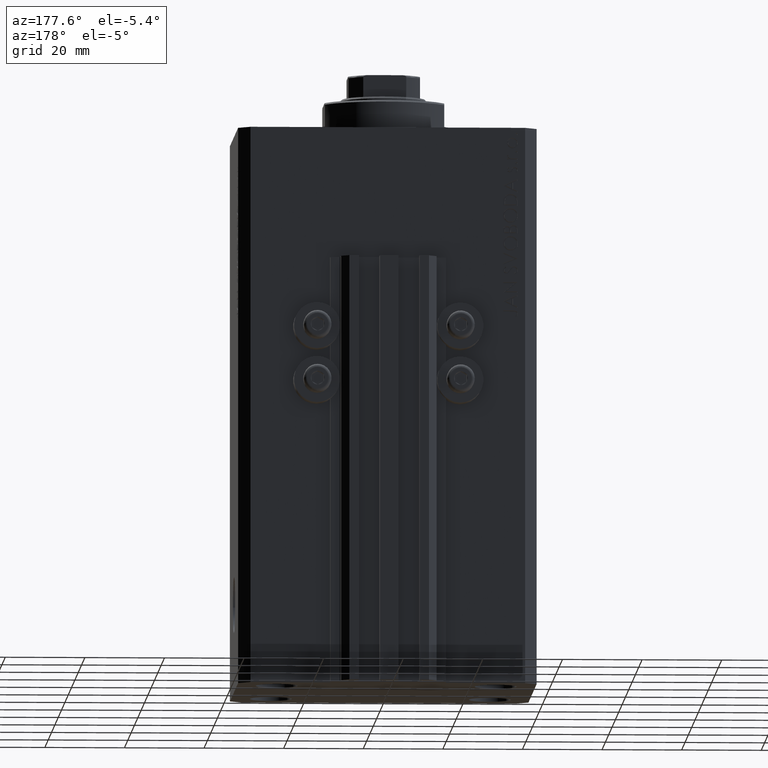
[diagram: clean part render]
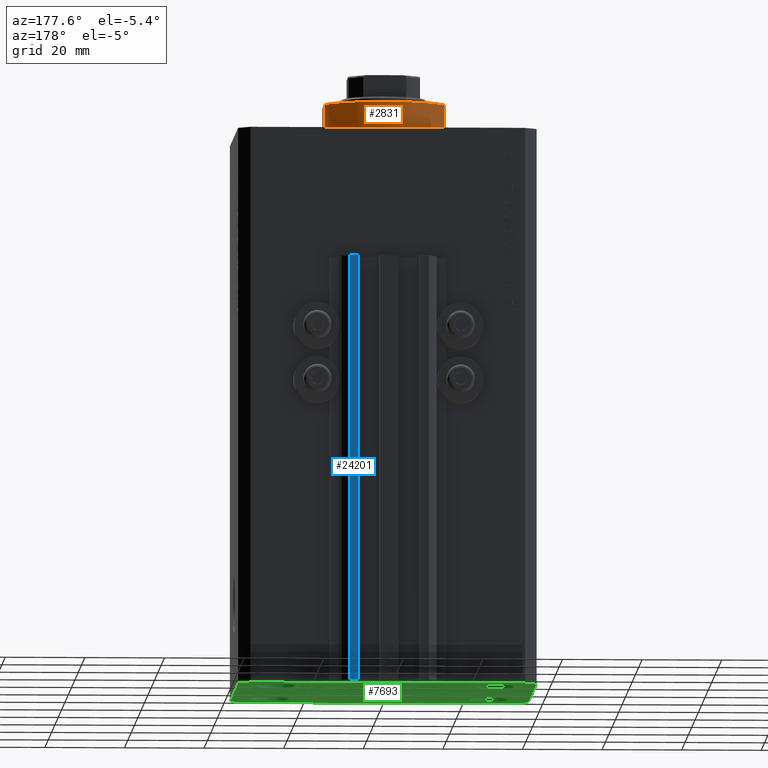
[diagram: same view with three faces highlighted in distinct colors, each labeled with its STEP entity id]
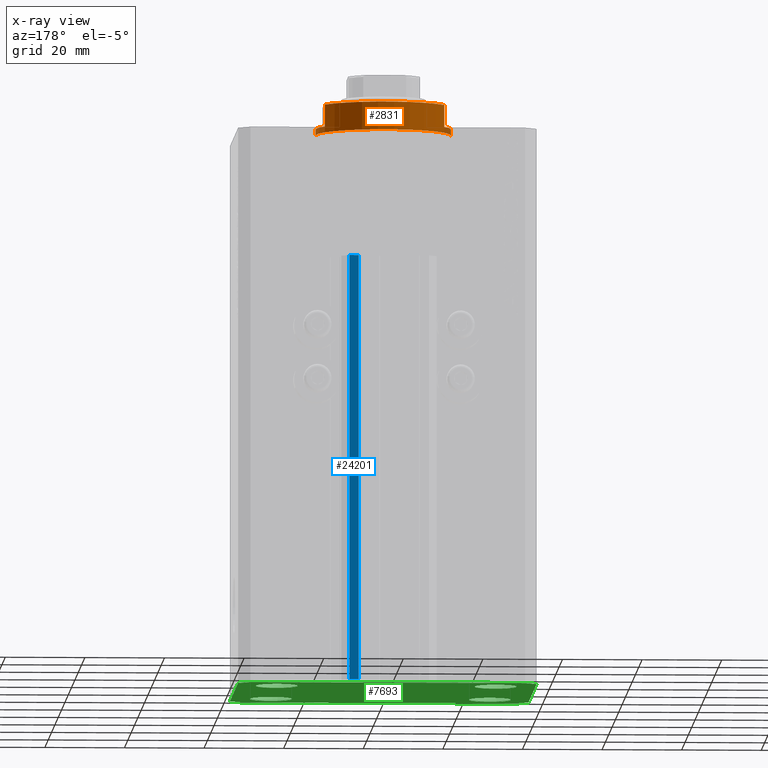
[diagram: x-ray of the same camera — body ghosted, the three highlighted faces saturated]
A machine part, auxiliary view with three faces highlighted in distinct colors.
The next image is the same camera in x-ray (body ghosted, the three faces saturated) — at least one of them is partly hidden behind the body in this view.
Their STEP definitions:

[orange] entity #2831 — the highlighted cylindrical surface (partial cylindrical patch) has radius 17 mm, axis along (0, 0, -1).
#820 = ORIENTED_EDGE ( 'NONE', *, *, #42246, .F. ) ;
#1907 = AXIS2_PLACEMENT_3D ( 'NONE', #11049, #12398, #40844 ) ;
#2378 = LINE ( 'NONE', #28148, #38679 ) ;
#2610 = CARTESIAN_POINT ( 'NONE',  ( 0.000000000000000000, 0.000000000000000000, -2.000000000000000000 ) ) ;
#2831 = ADVANCED_FACE ( 'NONE', ( #43549 ), #34150, .T. ) ;
#3089 = DIRECTION ( 'NONE',  ( 0.000000000000000000, 0.000000000000000000, -1.000000000000000000 ) ) ;
#3138 = ORIENTED_EDGE ( 'NONE', *, *, #18971, .T. ) ;
#3549 = DIRECTION ( 'NONE',  ( -1.000000000000000000, 0.000000000000000000, 0.000000000000000000 ) ) ;
#3737 = CARTESIAN_POINT ( 'NONE',  ( 15.00000000000000000, 8.000000000000001776, -7.500000000000013323 ) ) ;
#5488 = DIRECTION ( 'NONE',  ( -0.000000000000000000, -0.000000000000000000, -1.000000000000000000 ) ) ;
#6557 = VERTEX_POINT ( 'NONE', #43395 ) ;
#7345 = VERTEX_POINT ( 'NONE', #19188 ) ;
#7650 = VECTOR ( 'NONE', #30373, 1000.000000000000000 ) ;
#7924 = CARTESIAN_POINT ( 'NONE',  ( -15.00000000000000000, 8.000000000000001776, -8.000000000000000000 ) ) ;
#8160 = CARTESIAN_POINT ( 'NONE',  ( -17.00000000000000000, 2.081899558550500280E-15, -2.000000000000000000 ) ) ;
#8612 = DIRECTION ( 'NONE',  ( -1.000000000000000000, 0.000000000000000000, 0.000000000000000000 ) ) ;
#9525 = DIRECTION ( 'NONE',  ( -0.000000000000000000, -0.000000000000000000, 1.000000000000000000 ) ) ;
#10522 = AXIS2_PLACEMENT_3D ( 'NONE', #2610, #3089, #32218 ) ;
#10935 = CARTESIAN_POINT ( 'NONE',  ( 0.000000000000000000, 0.000000000000000000, -7.500000000000013323 ) ) ;
#11049 = CARTESIAN_POINT ( 'NONE',  ( 0.000000000000000000, 0.000000000000000000, -8.000000000000000000 ) ) ;
#11273 = CARTESIAN_POINT ( 'NONE',  ( -15.00000000000000000, 8.000000000000001776, -7.500000000000013323 ) ) ;
#12398 = DIRECTION ( 'NONE',  ( -0.000000000000000000, -0.000000000000000000, 1.000000000000000000 ) ) ;
#13147 = EDGE_CURVE ( 'NONE', #6557, #34863, #28142, .T. ) ;
#13293 = AXIS2_PLACEMENT_3D ( 'NONE', #31753, #5488, #42266 ) ;
#13467 = DIRECTION ( 'NONE',  ( -0.000000000000000000, -0.000000000000000000, 1.000000000000000000 ) ) ;
#14548 = ORIENTED_EDGE ( 'NONE', *, *, #47253, .F. ) ;
#18639 = ORIENTED_EDGE ( 'NONE', *, *, #40259, .T. ) ;
#18900 = VERTEX_POINT ( 'NONE', #11273 ) ;
#18971 = EDGE_CURVE ( 'NONE', #18900, #20647, #40886, .T. ) ;
#19188 = CARTESIAN_POINT ( 'NONE',  ( 14.99999999999999645, 8.000000000000003553, -2.000000000000000000 ) ) ;
#20647 = VERTEX_POINT ( 'NONE', #34540 ) ;
#22708 = CARTESIAN_POINT ( 'NONE',  ( 17.00000000000000000, 0.000000000000000000, -0.5000000000000004441 ) ) ;
#22837 = ORIENTED_EDGE ( 'NONE', *, *, #13147, .F. ) ;
#23013 = VERTEX_POINT ( 'NONE', #3737 ) ;
#23907 = CIRCLE ( 'NONE', #35377, 17.00000000000000000 ) ;
#24794 = CIRCLE ( 'NONE', #27078, 17.00000000000000000 ) ;
#25621 = VECTOR ( 'NONE', #13467, 1000.000000000000000 ) ;
#25819 = CARTESIAN_POINT ( 'NONE',  ( 0.000000000000000000, 0.000000000000000000, -2.000000000000000000 ) ) ;
#26090 = EDGE_LOOP ( 'NONE', ( #26124, #35915, #32798, #22837, #14548, #820, #18639, #3138 ) ) ;
#26124 = ORIENTED_EDGE ( 'NONE', *, *, #31512, .F. ) ;
#26497 = VERTEX_POINT ( 'NONE', #8160 ) ;
#27078 = AXIS2_PLACEMENT_3D ( 'NONE', #10935, #43431, #3549 ) ;
#28142 = LINE ( 'NONE', #45603, #33393 ) ;
#28148 = CARTESIAN_POINT ( 'NONE',  ( -17.00000000000000000, 2.081899558550500280E-15, -8.000000000000000000 ) ) ;
#29644 = DIRECTION ( 'NONE',  ( 0.000000000000000000, 0.000000000000000000, -1.000000000000000000 ) ) ;
#30099 = CIRCLE ( 'NONE', #13293, 17.00000000000000000 ) ;
#30373 = DIRECTION ( 'NONE',  ( -0.000000000000000000, -0.000000000000000000, 1.000000000000000000 ) ) ;
#31512 = EDGE_CURVE ( 'NONE', #26497, #20647, #23907, .T. ) ;
#31753 = CARTESIAN_POINT ( 'NONE',  ( 0.000000000000000000, 0.000000000000000000, -0.5000000000000004441 ) ) ;
#32218 = DIRECTION ( 'NONE',  ( -1.000000000000000000, 0.000000000000000000, 0.000000000000000000 ) ) ;
#32798 = ORIENTED_EDGE ( 'NONE', *, *, #37594, .T. ) ;
#33393 = VECTOR ( 'NONE', #9525, 1000.000000000000000 ) ;
#34150 = CYLINDRICAL_SURFACE ( 'NONE', #1907, 17.00000000000000000 ) ;
#34540 = CARTESIAN_POINT ( 'NONE',  ( -14.99999999999999645, 8.000000000000003553, -2.000000000000000000 ) ) ;
#34863 = VERTEX_POINT ( 'NONE', #22708 ) ;
#35377 = AXIS2_PLACEMENT_3D ( 'NONE', #25819, #29644, #8612 ) ;
#35453 = LINE ( 'NONE', #38799, #25621 ) ;
#35716 = CIRCLE ( 'NONE', #10522, 17.00000000000000000 ) ;
#35915 = ORIENTED_EDGE ( 'NONE', *, *, #45175, .T. ) ;
#37594 = EDGE_CURVE ( 'NONE', #37692, #34863, #30099, .T. ) ;
#37692 = VERTEX_POINT ( 'NONE', #39861 ) ;
#38679 = VECTOR ( 'NONE', #39135, 1000.000000000000000 ) ;
#38799 = CARTESIAN_POINT ( 'NONE',  ( 15.00000000000000000, 8.000000000000001776, -8.000000000000000000 ) ) ;
#39135 = DIRECTION ( 'NONE',  ( -0.000000000000000000, -0.000000000000000000, 1.000000000000000000 ) ) ;
#39861 = CARTESIAN_POINT ( 'NONE',  ( -17.00000000000000000, 2.081899558550500280E-15, -0.5000000000000004441 ) ) ;
#40259 = EDGE_CURVE ( 'NONE', #23013, #18900, #24794, .T. ) ;
#40844 = DIRECTION ( 'NONE',  ( 1.000000000000000000, 0.000000000000000000, 0.000000000000000000 ) ) ;
#40886 = LINE ( 'NONE', #7924, #7650 ) ;
#42246 = EDGE_CURVE ( 'NONE', #23013, #7345, #35453, .T. ) ;
#42266 = DIRECTION ( 'NONE',  ( 1.000000000000000000, 0.000000000000000000, 0.000000000000000000 ) ) ;
#43395 = CARTESIAN_POINT ( 'NONE',  ( 17.00000000000000000, 0.000000000000000000, -2.000000000000000000 ) ) ;
#43431 = DIRECTION ( 'NONE',  ( 0.000000000000000000, 0.000000000000000000, 1.000000000000000000 ) ) ;
#43549 = FACE_OUTER_BOUND ( 'NONE', #26090, .T. ) ;
#45175 = EDGE_CURVE ( 'NONE', #26497, #37692, #2378, .T. ) ;
#45603 = CARTESIAN_POINT ( 'NONE',  ( 17.00000000000000000, 0.000000000000000000, -8.000000000000000000 ) ) ;
#47253 = EDGE_CURVE ( 'NONE', #7345, #6557, #35716, .T. ) ;

[blue] entity #24201 — the highlighted planar face has unit normal (0, 1, 0).
#1618 = CARTESIAN_POINT ( 'NONE',  ( 9.999999999999998224, 35.50000000000001421, -33.00000000000000000 ) ) ;
#2148 = DIRECTION ( 'NONE',  ( 0.000000000000000000, 0.000000000000000000, 1.000000000000000000 ) ) ;
#3129 = VERTEX_POINT ( 'NONE', #42662 ) ;
#3596 = EDGE_CURVE ( 'NONE', #3129, #21233, #4131, .T. ) ;
#4131 = LINE ( 'NONE', #18915, #20224 ) ;
#4212 = DIRECTION ( 'NONE',  ( 0.000000000000000000, 1.000000000000000000, -0.000000000000000000 ) ) ;
#4213 = ORIENTED_EDGE ( 'NONE', *, *, #3596, .T. ) ;
#5053 = VERTEX_POINT ( 'NONE', #43140 ) ;
#5188 = DIRECTION ( 'NONE',  ( -1.000000000000000000, 0.000000000000000000, 0.000000000000000000 ) ) ;
#7867 = VECTOR ( 'NONE', #2148, 1000.000000000000000 ) ;
#8469 = LINE ( 'NONE', #16318, #23611 ) ;
#11845 = FACE_OUTER_BOUND ( 'NONE', #43885, .T. ) ;
#12581 = LINE ( 'NONE', #1618, #25418 ) ;
#14424 = ORIENTED_EDGE ( 'NONE', *, *, #30063, .F. ) ;
#16318 = CARTESIAN_POINT ( 'NONE',  ( 9.999999999999998224, 35.50000000000001421, -140.0000000000000000 ) ) ;
#18915 = CARTESIAN_POINT ( 'NONE',  ( 9.999999999999998224, 35.50000000000001421, -140.0000000000000000 ) ) ;
#19719 = ORIENTED_EDGE ( 'NONE', *, *, #30956, .T. ) ;
#20224 = VECTOR ( 'NONE', #44257, 1000.000000000000000 ) ;
#20274 = CARTESIAN_POINT ( 'NONE',  ( 7.649999999999998579, 35.50000000000001421, -140.0000000000000000 ) ) ;
#20992 = EDGE_CURVE ( 'NONE', #3129, #5053, #8469, .T. ) ;
#21233 = VERTEX_POINT ( 'NONE', #31019 ) ;
#22344 = CARTESIAN_POINT ( 'NONE',  ( 9.999999999999998224, 35.50000000000001421, -140.0000000000000000 ) ) ;
#23611 = VECTOR ( 'NONE', #37602, 1000.000000000000000 ) ;
#24201 = ADVANCED_FACE ( 'NONE', ( #11845 ), #26414, .T. ) ;
#25418 = VECTOR ( 'NONE', #5188, 1000.000000000000000 ) ;
#26414 = PLANE ( 'NONE',  #38959 ) ;
#30063 = EDGE_CURVE ( 'NONE', #5053, #38099, #12581, .T. ) ;
#30956 = EDGE_CURVE ( 'NONE', #21233, #38099, #38433, .T. ) ;
#31019 = CARTESIAN_POINT ( 'NONE',  ( 7.649999999999998579, 35.50000000000001421, -140.0000000000000000 ) ) ;
#37602 = DIRECTION ( 'NONE',  ( 0.000000000000000000, 0.000000000000000000, 1.000000000000000000 ) ) ;
#38099 = VERTEX_POINT ( 'NONE', #39696 ) ;
#38433 = LINE ( 'NONE', #20274, #7867 ) ;
#38959 = AXIS2_PLACEMENT_3D ( 'NONE', #22344, #4212, #40987 ) ;
#39696 = CARTESIAN_POINT ( 'NONE',  ( 7.649999999999998579, 35.50000000000001421, -33.00000000000000000 ) ) ;
#40493 = ORIENTED_EDGE ( 'NONE', *, *, #20992, .F. ) ;
#40987 = DIRECTION ( 'NONE',  ( 0.000000000000000000, 0.000000000000000000, 1.000000000000000000 ) ) ;
#42662 = CARTESIAN_POINT ( 'NONE',  ( 9.999999999999998224, 35.50000000000001421, -140.0000000000000000 ) ) ;
#43140 = CARTESIAN_POINT ( 'NONE',  ( 9.999999999999998224, 35.50000000000001421, -33.00000000000000000 ) ) ;
#43885 = EDGE_LOOP ( 'NONE', ( #14424, #40493, #4213, #19719 ) ) ;
#44257 = DIRECTION ( 'NONE',  ( -1.000000000000000000, 0.000000000000000000, 0.000000000000000000 ) ) ;

[green] entity #7693 — the highlighted planar face has unit normal (0, 0, 1).
#401 = ORIENTED_EDGE ( 'NONE', *, *, #1335, .F. ) ;
#635 = LINE ( 'NONE', #19230, #16343 ) ;
#913 = ORIENTED_EDGE ( 'NONE', *, *, #34269, .F. ) ;
#1151 = EDGE_CURVE ( 'NONE', #47142, #14734, #45563, .T. ) ;
#1335 = EDGE_CURVE ( 'NONE', #21007, #3024, #635, .T. ) ;
#1942 = FACE_BOUND ( 'NONE', #23399, .T. ) ;
#2489 = CARTESIAN_POINT ( 'NONE',  ( -22.25000000000000000, 17.49999999999999645, -140.0000000000000000 ) ) ;
#2663 = CARTESIAN_POINT ( 'NONE',  ( 34.49999999999999289, -27.49999999999999645, -140.0000000000000000 ) ) ;
#3024 = VERTEX_POINT ( 'NONE', #37205 ) ;
#3072 = VECTOR ( 'NONE', #21852, 1000.000000000000000 ) ;
#3428 = VERTEX_POINT ( 'NONE', #17750 ) ;
#3948 = CARTESIAN_POINT ( 'NONE',  ( 32.75000000000000000, 17.49999999999999289, -140.0000000000000000 ) ) ;
#4161 = DIRECTION ( 'NONE',  ( -0.000000000000000000, -0.000000000000000000, -1.000000000000000000 ) ) ;
#4254 = CARTESIAN_POINT ( 'NONE',  ( -32.75000000000000000, 17.49999999999999645, -140.0000000000000000 ) ) ;
#4732 = LINE ( 'NONE', #41271, #14947 ) ;
#4746 = CARTESIAN_POINT ( 'NONE',  ( 32.74999999999999289, -17.50000000000000000, -140.0000000000000000 ) ) ;
#5329 = EDGE_LOOP ( 'NONE', ( #8582, #29003 ) ) ;
#5512 = FACE_BOUND ( 'NONE', #14070, .T. ) ;
#5673 = CIRCLE ( 'NONE', #8755, 5.250000000000000888 ) ;
#5878 = VECTOR ( 'NONE', #44306, 1000.000000000000000 ) ;
#5907 = CARTESIAN_POINT ( 'NONE',  ( 37.49999999999999289, -24.50000000000000000, -140.0000000000000000 ) ) ;
#6583 = CARTESIAN_POINT ( 'NONE',  ( 37.50000000000051870, 24.49999999999995381, -140.0000000000000000 ) ) ;
#7693 = ADVANCED_FACE ( 'NONE', ( #13383, #13144, #1942, #5512, #12440 ), #20069, .F. ) ;
#8557 = EDGE_CURVE ( 'NONE', #44649, #33722, #30944, .T. ) ;
#8582 = ORIENTED_EDGE ( 'NONE', *, *, #24155, .F. ) ;
#8755 = AXIS2_PLACEMENT_3D ( 'NONE', #30192, #4161, #34008 ) ;
#8877 = DIRECTION ( 'NONE',  ( -0.000000000000000000, -0.000000000000000000, -1.000000000000000000 ) ) ;
#8948 = VECTOR ( 'NONE', #21141, 1000.000000000000114 ) ;
#8953 = CARTESIAN_POINT ( 'NONE',  ( 37.50000000000051870, 24.49999999999995381, -140.0000000000000000 ) ) ;
#9231 = AXIS2_PLACEMENT_3D ( 'NONE', #35762, #42924, #21413 ) ;
#9428 = ORIENTED_EDGE ( 'NONE', *, *, #29846, .F. ) ;
#9819 = LINE ( 'NONE', #35142, #13532 ) ;
#9857 = DIRECTION ( 'NONE',  ( 1.000000000000000000, 0.000000000000000000, 0.000000000000000000 ) ) ;
#10010 = VERTEX_POINT ( 'NONE', #4254 ) ;
#10430 = EDGE_LOOP ( 'NONE', ( #31952, #18006, #37903, #35002, #12809, #29093, #16193, #401 ) ) ;
#10749 = CARTESIAN_POINT ( 'NONE',  ( -27.50000000000000000, 17.49999999999999645, -140.0000000000000000 ) ) ;
#11610 = AXIS2_PLACEMENT_3D ( 'NONE', #40475, #22545, #26376 ) ;
#11841 = DIRECTION ( 'NONE',  ( -0.7071067811865471286, -0.7071067811865479058, 0.000000000000000000 ) ) ;
#12440 = FACE_OUTER_BOUND ( 'NONE', #10430, .T. ) ;
#12476 = VERTEX_POINT ( 'NONE', #35132 ) ;
#12588 = DIRECTION ( 'NONE',  ( 1.000000000000000000, 0.000000000000000000, 0.000000000000000000 ) ) ;
#12644 = EDGE_CURVE ( 'NONE', #22486, #10010, #30331, .T. ) ;
#12809 = ORIENTED_EDGE ( 'NONE', *, *, #41914, .F. ) ;
#13144 = FACE_BOUND ( 'NONE', #30785, .T. ) ;
#13383 = FACE_BOUND ( 'NONE', #5329, .T. ) ;
#13416 = CARTESIAN_POINT ( 'NONE',  ( -32.74999999999999289, -17.50000000000000000, -140.0000000000000000 ) ) ;
#13438 = VECTOR ( 'NONE', #29959, 1000.000000000000114 ) ;
#13501 = LINE ( 'NONE', #6583, #8948 ) ;
#13532 = VECTOR ( 'NONE', #28440, 1000.000000000000000 ) ;
#14070 = EDGE_LOOP ( 'NONE', ( #18601, #35031 ) ) ;
#14259 = EDGE_CURVE ( 'NONE', #33722, #44649, #27315, .T. ) ;
#14734 = VERTEX_POINT ( 'NONE', #8953 ) ;
#14947 = VECTOR ( 'NONE', #12588, 1000.000000000000000 ) ;
#16096 = CARTESIAN_POINT ( 'NONE',  ( -34.49999999999999289, 27.50000000000000000, -140.0000000000000000 ) ) ;
#16193 = ORIENTED_EDGE ( 'NONE', *, *, #45540, .F. ) ;
#16343 = VECTOR ( 'NONE', #11841, 1000.000000000000000 ) ;
#17750 = CARTESIAN_POINT ( 'NONE',  ( -34.49999999999998579, -27.49999999999999645, -140.0000000000000000 ) ) ;
#18006 = ORIENTED_EDGE ( 'NONE', *, *, #45457, .F. ) ;
#18040 = LINE ( 'NONE', #32615, #3072 ) ;
#18465 = ORIENTED_EDGE ( 'NONE', *, *, #8557, .F. ) ;
#18601 = ORIENTED_EDGE ( 'NONE', *, *, #12644, .F. ) ;
#19230 = CARTESIAN_POINT ( 'NONE',  ( -34.49999999999999289, 27.50000000000000000, -140.0000000000000000 ) ) ;
#19590 = VERTEX_POINT ( 'NONE', #36488 ) ;
#20069 = PLANE ( 'NONE',  #30170 ) ;
#21007 = VERTEX_POINT ( 'NONE', #16096 ) ;
#21141 = DIRECTION ( 'NONE',  ( -0.7071067811865364705, 0.7071067811865584529, 0.000000000000000000 ) ) ;
#21413 = DIRECTION ( 'NONE',  ( 1.000000000000000000, 0.000000000000000000, 0.000000000000000000 ) ) ;
#21625 = EDGE_CURVE ( 'NONE', #12476, #21007, #18040, .T. ) ;
#21804 = AXIS2_PLACEMENT_3D ( 'NONE', #30150, #8877, #30840 ) ;
#21852 = DIRECTION ( 'NONE',  ( -1.000000000000000000, 0.000000000000000000, 0.000000000000000000 ) ) ;
#22486 = VERTEX_POINT ( 'NONE', #2489 ) ;
#22545 = DIRECTION ( 'NONE',  ( -0.000000000000000000, -0.000000000000000000, -1.000000000000000000 ) ) ;
#22966 = DIRECTION ( 'NONE',  ( -0.000000000000000000, -0.000000000000000000, -1.000000000000000000 ) ) ;
#23399 = EDGE_LOOP ( 'NONE', ( #9428, #913 ) ) ;
#23628 = CARTESIAN_POINT ( 'NONE',  ( 37.49999999999999289, -24.50000000000000000, -140.0000000000000000 ) ) ;
#24155 = EDGE_CURVE ( 'NONE', #24513, #32331, #35177, .T. ) ;
#24279 = DIRECTION ( 'NONE',  ( 1.076236605503979380E-14, 1.000000000000000000, 0.000000000000000000 ) ) ;
#24513 = VERTEX_POINT ( 'NONE', #41580 ) ;
#25320 = DIRECTION ( 'NONE',  ( 1.000000000000000000, 0.000000000000000000, 0.000000000000000000 ) ) ;
#26376 = DIRECTION ( 'NONE',  ( 1.000000000000000000, 0.000000000000000000, 0.000000000000000000 ) ) ;
#27049 = AXIS2_PLACEMENT_3D ( 'NONE', #39935, #42584, #9857 ) ;
#27315 = CIRCLE ( 'NONE', #40314, 5.250000000000000888 ) ;
#27974 = CARTESIAN_POINT ( 'NONE',  ( 27.49999999999999289, -17.50000000000000000, -140.0000000000000000 ) ) ;
#28279 = EDGE_CURVE ( 'NONE', #32331, #24513, #45950, .T. ) ;
#28440 = DIRECTION ( 'NONE',  ( 0.7071067811865483499, -0.7071067811865466846, 0.000000000000000000 ) ) ;
#29003 = ORIENTED_EDGE ( 'NONE', *, *, #28279, .F. ) ;
#29093 = ORIENTED_EDGE ( 'NONE', *, *, #46138, .F. ) ;
#29846 = EDGE_CURVE ( 'NONE', #44450, #32359, #29956, .T. ) ;
#29956 = CIRCLE ( 'NONE', #45979, 5.250000000000000888 ) ;
#29959 = DIRECTION ( 'NONE',  ( 0.7071067811865474617, 0.7071067811865474617, 0.000000000000000000 ) ) ;
#30150 = CARTESIAN_POINT ( 'NONE',  ( 27.49999999999999289, -17.50000000000000000, -140.0000000000000000 ) ) ;
#30170 = AXIS2_PLACEMENT_3D ( 'NONE', #38710, #30833, #38006 ) ;
#30192 = CARTESIAN_POINT ( 'NONE',  ( 27.50000000000000000, 17.49999999999999289, -140.0000000000000000 ) ) ;
#30331 = CIRCLE ( 'NONE', #32610, 5.250000000000000888 ) ;
#30785 = EDGE_LOOP ( 'NONE', ( #33902, #18465 ) ) ;
#30833 = DIRECTION ( 'NONE',  ( 0.000000000000000000, 0.000000000000000000, 1.000000000000000000 ) ) ;
#30840 = DIRECTION ( 'NONE',  ( 1.000000000000000000, 0.000000000000000000, 0.000000000000000000 ) ) ;
#30896 = CARTESIAN_POINT ( 'NONE',  ( 34.49999999999999289, -27.49999999999999645, -140.0000000000000000 ) ) ;
#30944 = CIRCLE ( 'NONE', #21804, 5.250000000000000888 ) ;
#31952 = ORIENTED_EDGE ( 'NONE', *, *, #21625, .F. ) ;
#32331 = VERTEX_POINT ( 'NONE', #13416 ) ;
#32359 = VERTEX_POINT ( 'NONE', #45917 ) ;
#32610 = AXIS2_PLACEMENT_3D ( 'NONE', #10749, #32958, #25320 ) ;
#32615 = CARTESIAN_POINT ( 'NONE',  ( 34.50000000000056843, 27.50000000000000000, -140.0000000000000000 ) ) ;
#32958 = DIRECTION ( 'NONE',  ( -0.000000000000000000, -0.000000000000000000, -1.000000000000000000 ) ) ;
#33023 = CARTESIAN_POINT ( 'NONE',  ( 27.50000000000000000, 17.49999999999999289, -140.0000000000000000 ) ) ;
#33722 = VERTEX_POINT ( 'NONE', #4746 ) ;
#33731 = DIRECTION ( 'NONE',  ( 1.000000000000000000, 0.000000000000000000, 0.000000000000000000 ) ) ;
#33902 = ORIENTED_EDGE ( 'NONE', *, *, #14259, .F. ) ;
#34008 = DIRECTION ( 'NONE',  ( 1.000000000000000000, 0.000000000000000000, 0.000000000000000000 ) ) ;
#34269 = EDGE_CURVE ( 'NONE', #32359, #44450, #5673, .T. ) ;
#34467 = EDGE_CURVE ( 'NONE', #10010, #22486, #35443, .T. ) ;
#34714 = LINE ( 'NONE', #30896, #13438 ) ;
#35002 = ORIENTED_EDGE ( 'NONE', *, *, #42573, .F. ) ;
#35031 = ORIENTED_EDGE ( 'NONE', *, *, #34467, .F. ) ;
#35132 = CARTESIAN_POINT ( 'NONE',  ( 34.50000000000056843, 27.50000000000000000, -140.0000000000000000 ) ) ;
#35142 = CARTESIAN_POINT ( 'NONE',  ( -37.49999999999999289, -24.50000000000000000, -140.0000000000000000 ) ) ;
#35177 = CIRCLE ( 'NONE', #9231, 5.250000000000000888 ) ;
#35443 = CIRCLE ( 'NONE', #27049, 5.250000000000000888 ) ;
#35451 = VECTOR ( 'NONE', #24279, 1000.000000000000000 ) ;
#35762 = CARTESIAN_POINT ( 'NONE',  ( -27.49999999999999289, -17.50000000000000000, -140.0000000000000000 ) ) ;
#36437 = LINE ( 'NONE', #40477, #5878 ) ;
#36488 = CARTESIAN_POINT ( 'NONE',  ( -37.49999999999999289, -24.50000000000000000, -140.0000000000000000 ) ) ;
#37205 = CARTESIAN_POINT ( 'NONE',  ( -37.49999999999999289, 24.50000000000000000, -140.0000000000000000 ) ) ;
#37903 = ORIENTED_EDGE ( 'NONE', *, *, #1151, .F. ) ;
#38006 = DIRECTION ( 'NONE',  ( 1.000000000000000000, 0.000000000000000000, -0.000000000000000000 ) ) ;
#38710 = CARTESIAN_POINT ( 'NONE',  ( 0.000000000000000000, 0.000000000000000000, -140.0000000000000000 ) ) ;
#39677 = DIRECTION ( 'NONE',  ( -0.000000000000000000, -0.000000000000000000, -1.000000000000000000 ) ) ;
#39730 = VERTEX_POINT ( 'NONE', #2663 ) ;
#39935 = CARTESIAN_POINT ( 'NONE',  ( -27.50000000000000000, 17.49999999999999645, -140.0000000000000000 ) ) ;
#40314 = AXIS2_PLACEMENT_3D ( 'NONE', #27974, #39677, #46614 ) ;
#40475 = CARTESIAN_POINT ( 'NONE',  ( -27.49999999999999289, -17.50000000000000000, -140.0000000000000000 ) ) ;
#40477 = CARTESIAN_POINT ( 'NONE',  ( -37.49999999999999289, 24.50000000000000000, -140.0000000000000000 ) ) ;
#41271 = CARTESIAN_POINT ( 'NONE',  ( -34.49999999999998579, -27.49999999999999645, -140.0000000000000000 ) ) ;
#41580 = CARTESIAN_POINT ( 'NONE',  ( -22.24999999999999289, -17.50000000000000000, -140.0000000000000000 ) ) ;
#41914 = EDGE_CURVE ( 'NONE', #3428, #39730, #4732, .T. ) ;
#42573 = EDGE_CURVE ( 'NONE', #39730, #47142, #34714, .T. ) ;
#42584 = DIRECTION ( 'NONE',  ( -0.000000000000000000, -0.000000000000000000, -1.000000000000000000 ) ) ;
#42924 = DIRECTION ( 'NONE',  ( -0.000000000000000000, -0.000000000000000000, -1.000000000000000000 ) ) ;
#43077 = CARTESIAN_POINT ( 'NONE',  ( 22.24999999999999289, -17.50000000000000000, -140.0000000000000000 ) ) ;
#44306 = DIRECTION ( 'NONE',  ( 0.000000000000000000, -1.000000000000000000, 0.000000000000000000 ) ) ;
#44450 = VERTEX_POINT ( 'NONE', #3948 ) ;
#44649 = VERTEX_POINT ( 'NONE', #43077 ) ;
#45457 = EDGE_CURVE ( 'NONE', #14734, #12476, #13501, .T. ) ;
#45540 = EDGE_CURVE ( 'NONE', #3024, #19590, #36437, .T. ) ;
#45563 = LINE ( 'NONE', #5907, #35451 ) ;
#45917 = CARTESIAN_POINT ( 'NONE',  ( 22.25000000000000000, 17.49999999999999289, -140.0000000000000000 ) ) ;
#45950 = CIRCLE ( 'NONE', #11610, 5.250000000000000888 ) ;
#45979 = AXIS2_PLACEMENT_3D ( 'NONE', #33023, #22966, #33731 ) ;
#46138 = EDGE_CURVE ( 'NONE', #19590, #3428, #9819, .T. ) ;
#46614 = DIRECTION ( 'NONE',  ( 1.000000000000000000, 0.000000000000000000, 0.000000000000000000 ) ) ;
#47142 = VERTEX_POINT ( 'NONE', #23628 ) ;